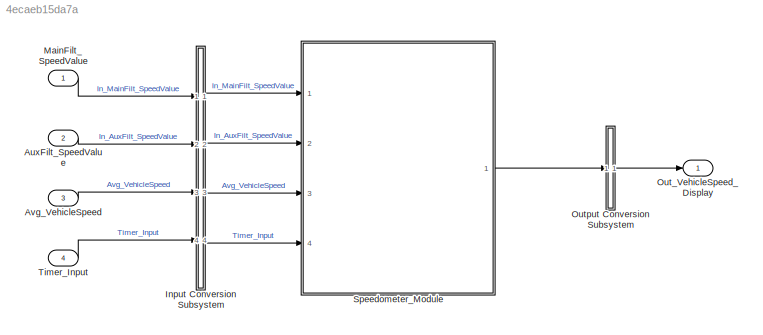
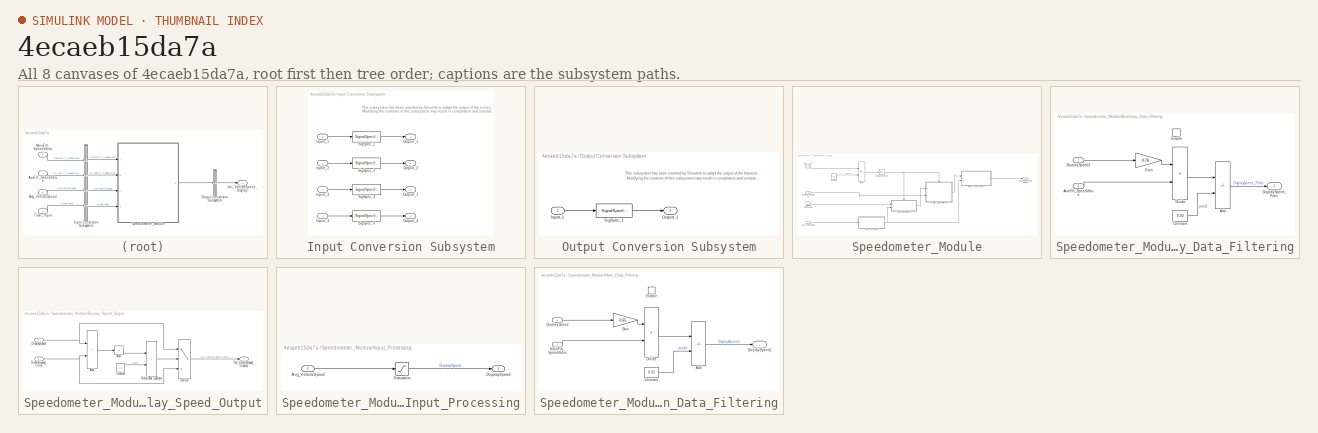
[diagram: thumbnail index - all 8 canvases of the model, root first then tree order]
MODEL slx_4ecaeb15da7a
KIND model
CONFIG AbsTol = auto
CONFIG EnableMultiTasking = off
CONFIG FixedStep = 0.01
CONFIG MaxStep = auto
CONFIG MinStep = auto
CONFIG RelTol = 1e-3
CONFIG SampleTimeConstraint = Unconstrained
CONFIG SolverName = FixedStepDiscrete
CONFIG StartTime = 0.0
CONFIG StopTime = 10.0
BLOCK [Inport] AuxFilt_SpeedValue
  Interpolate = off
  OutDataTypeStr = uint8
  OutMax = 3
  OutMin = 1
  Port = 2
  PortDimensions = [1]
  SampleTime = 0.01
  SignalType = real
  VarSizeSig = No
BLOCK [Inport] Avg_VehicleSpeed
  Interpolate = off
  OutDataTypeStr = fixdt('ufix16_Sp01')
  OutMax = 280
  OutMin = 0
  Port = 3
  PortDimensions = [1]
  SampleTime = 0.01
  SignalType = real
  VarSizeSig = No
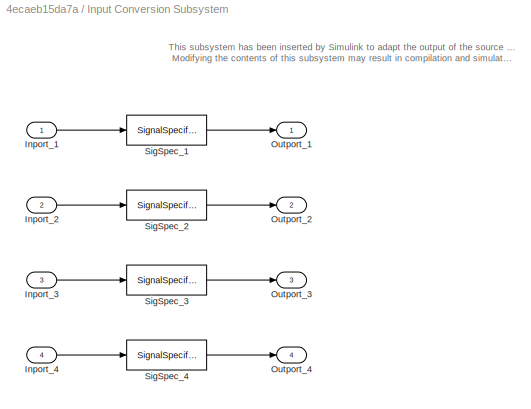
BLOCK [SubSystem] Input Conversion Subsystem
  AttributesFormatString = %<Description>
  Description = Signal spec.\nand routing
  Permissions = ReadOnly
  PermitHierarchicalResolution = ExplicitOnly
  Ports = [4, 4]
  RequestExecContextInheritance = off
  Tag = __SLT_ICS__
  TreatAsGroupedWhenPropagatingVariantConditions = off
  UserDataPersistent = on
BLOCK [Inport] Input Conversion Subsystem/Inport_1
BLOCK [Inport] Input Conversion Subsystem/Inport_2
  Port = 2
BLOCK [Inport] Input Conversion Subsystem/Inport_3
  Port = 3
BLOCK [Inport] Input Conversion Subsystem/Inport_4
  Port = 4
BLOCK [Outport] Input Conversion Subsystem/Outport_1
BLOCK [Outport] Input Conversion Subsystem/Outport_2
  Port = 2
BLOCK [Outport] Input Conversion Subsystem/Outport_3
  Port = 3
BLOCK [Outport] Input Conversion Subsystem/Outport_4
  Port = 4
BLOCK [SignalSpecification] Input Conversion Subsystem/SigSpec_1
  Dimensions = [1]
  OutDataTypeStr = uint8
  SampleTime = 0.01
  SignalType = real
  VarSizeSig = No
BLOCK [SignalSpecification] Input Conversion Subsystem/SigSpec_2
  Dimensions = [1]
  OutDataTypeStr = uint8
  SampleTime = 0.01
  SignalType = real
  VarSizeSig = No
BLOCK [SignalSpecification] Input Conversion Subsystem/SigSpec_3
  Dimensions = [1]
  OutDataTypeStr = fixdt('ufix16_Sp01')
  SampleTime = 0.01
  SignalType = real
  VarSizeSig = No
BLOCK [SignalSpecification] Input Conversion Subsystem/SigSpec_4
  Dimensions = [1]
  OutDataTypeStr = uint16
  SampleTime = 0.01
  SignalType = real
  VarSizeSig = No
BLOCK [Inport] MainFilt_SpeedValue
  Interpolate = off
  OutDataTypeStr = uint8
  OutMax = 3
  OutMin = 1
  PortDimensions = [1]
  SampleTime = 0.01
  SignalType = real
  VarSizeSig = No
BLOCK [Outport] Out_VehicleSpeed_Display
BLOCK [SubSystem] Output Conversion Subsystem
  AttributesFormatString = %<Description>
  Description = Signal spec.\nand routing
  Permissions = ReadOnly
  PermitHierarchicalResolution = ExplicitOnly
  Ports = [1, 1]
  RequestExecContextInheritance = off
  Tag = __SLT_OCS__
  TreatAsGroupedWhenPropagatingVariantConditions = off
  UserDataPersistent = on
BLOCK [Inport] Output Conversion Subsystem/Inport_1
BLOCK [Outport] Output Conversion Subsystem/Outport_1
BLOCK [SignalSpecification] Output Conversion Subsystem/SigSpec_1
  Dimensions = [1]
  OutDataTypeStr = fixdt('ufix16_Sp01')
  SampleTime = 0.01
  SignalType = real
  VarSizeSig = No
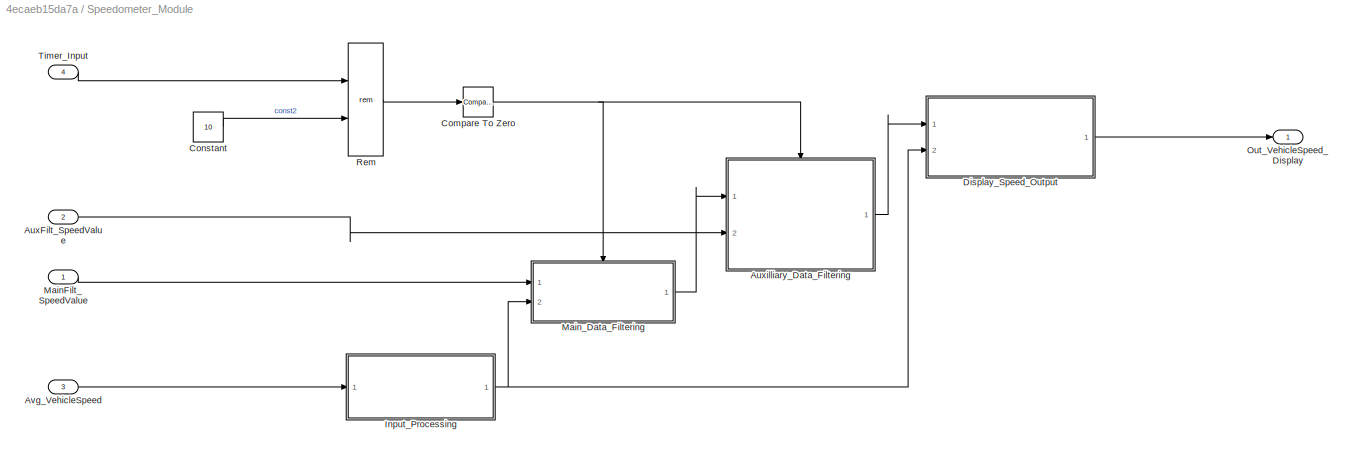
BLOCK [SubSystem] Speedometer_Module
  Ports = [4, 1]
  RequestExecContextInheritance = off
  TreatAsAtomicUnit = on
BLOCK [Inport] Speedometer_Module/AuxFilt_SpeedValue
  OutDataTypeStr = fixdt(0,8,1,0)
  OutMax = 3
  OutMin = 1
  Port = 2
  PortDimensions = 1
  SampleTime = 0.01
BLOCK [SubSystem] Speedometer_Module/Auxilliary_Data_Filtering
  Ports = [2, 1, 1]
  RequestExecContextInheritance = off
BLOCK [Sum] Speedometer_Module/Auxilliary_Data_Filtering/Add
  AccumDataTypeStr = fixdt(0,16,0.01,0)
  IconShape = rectangular
  Inputs = +-
  OutDataTypeStr = fixdt(0,16,0.01,0)
  Ports = [2, 1]
BLOCK [Inport] Speedometer_Module/Auxilliary_Data_Filtering/AuxFilt_SpeedValue
  Port = 2
BLOCK [Constant] Speedometer_Module/Auxilliary_Data_Filtering/Constant
  OutDataTypeStr = fixdt(0,16,0.01,0)
  OutMax = 0.03
  OutMin = 0.03
  Value = 0.03
BLOCK [Inport] Speedometer_Module/Auxilliary_Data_Filtering/DisplaySpeed1
  OutDataTypeStr = fixdt(0,16,0.01,0)
  PortDimensions = 1
  SampleTime = 0.01
BLOCK [Outport] Speedometer_Module/Auxilliary_Data_Filtering/DisplaySpeed_Filter
  OutDataTypeStr = fixdt(0,16,0.01,0)
  PortDimensions = 1
  SampleTime = 0.01
BLOCK [Product] Speedometer_Module/Auxilliary_Data_Filtering/Divide
  Inputs = */
  OutDataTypeStr = fixdt(0,16,0.01,0)
  Ports = [2, 1]
BLOCK [EnablePort] Speedometer_Module/Auxilliary_Data_Filtering/Enable
  Ports = []
BLOCK [Gain] Speedometer_Module/Auxilliary_Data_Filtering/Gain
  Gain = 0.78
  OutDataTypeStr = fixdt(0,16,0.01,0)
  ParamDataTypeStr = fixdt(0,16,0.01,0)
  ParamMax = 0.78
  ParamMin = 0.78
BLOCK [Inport] Speedometer_Module/Avg_VehicleSpeed
  OutDataTypeStr = fixdt(0,16,0.01,0)
  OutMax = 280
  OutMin = 0
  Port = 3
  PortDimensions = 1
  SampleTime = 0.01
BLOCK [Reference] Speedometer_Module/Compare To Zero  REF=simulink/Logic and Bit
Operations/Compare
To Zero
  Ports = [1, 1]
  SourceBlock = simulink/Logic and Bit\nOperations/Compare\nTo Zero
  SourceProductBaseCode = SL
  SourceType = Compare To Zero
BLOCK [Constant] Speedometer_Module/Constant
  OutDataTypeStr = fixdt(0,16,0)
  Value = 10
BLOCK [SubSystem] Speedometer_Module/Display_Speed_Output
  Ports = [2, 1]
  RequestExecContextInheritance = off
BLOCK [Abs] Speedometer_Module/Display_Speed_Output/Abs
  OutDataTypeStr = fixdt(0,16,0.01,0)
  SaturateOnIntegerOverflow = off
BLOCK [Sum] Speedometer_Module/Display_Speed_Output/Add
  AccumDataTypeStr = fixdt(0,16,0.01,0)
  IconShape = rectangular
  Inputs = -+
  OutDataTypeStr = fixdt(0,16,0.01,0)
  Ports = [2, 1]
BLOCK [Constant] Speedometer_Module/Display_Speed_Output/Constant
  OutDataTypeStr = fixdt(0,16,0.01,0)
  OutMax = 1.5
  OutMin = 1.5
  Value = 1.5
BLOCK [Inport] Speedometer_Module/Display_Speed_Output/DisplaySpeed
  OutDataTypeStr = fixdt(0,16,0.01,0)
  Port = 2
  PortDimensions = 1
  SampleTime = 0.01
BLOCK [Inport] Speedometer_Module/Display_Speed_Output/DisplaySpeed_Filter
  OutDataTypeStr = fixdt(0,16,0.01,0)
  PortDimensions = 1
  SampleTime = 0.01
BLOCK [Outport] Speedometer_Module/Display_Speed_Output/Out_VehicleSpeed_Display
BLOCK [RelationalOperator] Speedometer_Module/Display_Speed_Output/Relational Operator
  InputSameDT = off
  Operator = >
  OutDataTypeStr = boolean
  Ports = [2, 1]
  RndMeth = Simplest
BLOCK [Switch] Speedometer_Module/Display_Speed_Output/Switch
  Criteria = u2 ~= 0
  InputSameDT = off
  OutDataTypeStr = fixdt(0,16,0.01,0)
  SaturateOnIntegerOverflow = off
BLOCK [SubSystem] Speedometer_Module/Input_Processing
  Ports = [1, 1]
  RequestExecContextInheritance = off
BLOCK [Inport] Speedometer_Module/Input_Processing/Avg_VehicleSpeed
  OutDataTypeStr = fixdt(0,16,0.01,0)
  OutMax = 280
  OutMin = 0
  PortDimensions = 1
  SampleTime = 0.01
BLOCK [Outport] Speedometer_Module/Input_Processing/DisplaySpeed
  OutDataTypeStr = fixdt(0,16,0.01,0)
  PortDimensions = 1
  SampleTime = 0.01
BLOCK [Saturate] Speedometer_Module/Input_Processing/Saturation
  LowerLimit = 2
  OutDataTypeStr = fixdt(0,16,0.01,0)
  UpperLimit = 250
BLOCK [Inport] Speedometer_Module/MainFilt_SpeedValue
  OutDataTypeStr = fixdt(0,8,1,0)
  OutMax = 3
  OutMin = 1
  PortDimensions = 1
  SampleTime = 0.01
BLOCK [SubSystem] Speedometer_Module/Main_Data_Filtering
  Ports = [2, 1, 1]
  RequestExecContextInheritance = off
BLOCK [Sum] Speedometer_Module/Main_Data_Filtering/Add
  AccumDataTypeStr = fixdt(0,16,0.01,0)
  IconShape = rectangular
  Inputs = +-
  OutDataTypeStr = fixdt(0,16,0.01,0)
  Ports = [2, 1]
BLOCK [Constant] Speedometer_Module/Main_Data_Filtering/Constant
  OutDataTypeStr = fixdt(0,16,0.01,0)
  OutMax = 0.05
  OutMin = 0.05
  Value = 0.05
BLOCK [Inport] Speedometer_Module/Main_Data_Filtering/DisplaySpeed
  OutDataTypeStr = fixdt(0,16,0.01,0)
  Port = 2
  PortDimensions = 1
  SampleTime = 0.01
BLOCK [Outport] Speedometer_Module/Main_Data_Filtering/DisplaySpeed1
  OutDataTypeStr = fixdt(0,16,0.01,0)
  PortDimensions = 1
  SampleTime = 0.01
BLOCK [Product] Speedometer_Module/Main_Data_Filtering/Divide
  Inputs = */
  OutDataTypeStr = fixdt(0,16,0.01,0)
  Ports = [2, 1]
BLOCK [EnablePort] Speedometer_Module/Main_Data_Filtering/Enable
  Ports = []
BLOCK [Gain] Speedometer_Module/Main_Data_Filtering/Gain
  Gain = 0.65
  OutDataTypeStr = fixdt(0,16,0.01,0)
  ParamDataTypeStr = fixdt(0,16,0.01,0)
  ParamMax = 0.65
  ParamMin = 0.65
BLOCK [Inport] Speedometer_Module/Main_Data_Filtering/MainFilt_SpeedValue
  OutDataTypeStr = fixdt(0,8,1,0)
  OutMax = 3
  OutMin = 1
  PortDimensions = 1
  SampleTime = 0.01
BLOCK [Outport] Speedometer_Module/Out_VehicleSpeed_Display
BLOCK [Math] Speedometer_Module/Rem
  Operator = rem
  Ports = [2, 1]
BLOCK [Inport] Speedometer_Module/Timer_Input
  OutDataTypeStr = fixdt(0,16,0)
  Port = 4
  PortDimensions = 1
  SampleTime = 0.01
BLOCK [Inport] Timer_Input
  Interpolate = off
  OutDataTypeStr = uint16
  Port = 4
  PortDimensions = [1]
  SampleTime = 0.01
  SignalType = real
  VarSizeSig = No
ANNOTATION Input Conversion Subsystem: This subsystem has been inserted by Simulink to adapt the output of the source blocks to the interface required by the harnessed component. Modifying the contents of this subsystem may result in compilation and simulation failure.
ANNOTATION Output Conversion Subsystem: This subsystem has been inserted by Simulink to adapt the output of the harnessed component to the interface required by the sink blocks. Modifying the contents of this subsystem may result in compilation and simulation failure.
LINE AuxFilt_SpeedValue:1 -> Input Conversion Subsystem:2
LINE Avg_VehicleSpeed:1 -> Input Conversion Subsystem:3
LINE Input Conversion Subsystem/Inport_1:1 -> Input Conversion Subsystem/SigSpec_1:1
LINE Input Conversion Subsystem/Inport_2:1 -> Input Conversion Subsystem/SigSpec_2:1
LINE Input Conversion Subsystem/Inport_3:1 -> Input Conversion Subsystem/SigSpec_3:1
LINE Input Conversion Subsystem/Inport_4:1 -> Input Conversion Subsystem/SigSpec_4:1
LINE Input Conversion Subsystem/SigSpec_1:1 -> Input Conversion Subsystem/Outport_1:1
LINE Input Conversion Subsystem/SigSpec_2:1 -> Input Conversion Subsystem/Outport_2:1
LINE Input Conversion Subsystem/SigSpec_3:1 -> Input Conversion Subsystem/Outport_3:1
LINE Input Conversion Subsystem/SigSpec_4:1 -> Input Conversion Subsystem/Outport_4:1
LINE Input Conversion Subsystem:1 -> Speedometer_Module:1
LINE Input Conversion Subsystem:2 -> Speedometer_Module:2
LINE Input Conversion Subsystem:3 -> Speedometer_Module:3
LINE Input Conversion Subsystem:4 -> Speedometer_Module:4
LINE MainFilt_SpeedValue:1 -> Input Conversion Subsystem:1
LINE Output Conversion Subsystem/Inport_1:1 -> Output Conversion Subsystem/SigSpec_1:1
LINE Output Conversion Subsystem/SigSpec_1:1 -> Output Conversion Subsystem/Outport_1:1
LINE Output Conversion Subsystem:1 -> Out_VehicleSpeed_Display:1
LINE Speedometer_Module/AuxFilt_SpeedValue:1 -> Speedometer_Module/Auxilliary_Data_Filtering:2
LINE Speedometer_Module/Auxilliary_Data_Filtering/Add:1 -> Speedometer_Module/Auxilliary_Data_Filtering/DisplaySpeed_Filter:1
LINE Speedometer_Module/Auxilliary_Data_Filtering/AuxFilt_SpeedValue:1 -> Speedometer_Module/Auxilliary_Data_Filtering/Divide:2
LINE Speedometer_Module/Auxilliary_Data_Filtering/Constant:1 -> Speedometer_Module/Auxilliary_Data_Filtering/Add:2
LINE Speedometer_Module/Auxilliary_Data_Filtering/DisplaySpeed1:1 -> Speedometer_Module/Auxilliary_Data_Filtering/Gain:1
LINE Speedometer_Module/Auxilliary_Data_Filtering/Divide:1 -> Speedometer_Module/Auxilliary_Data_Filtering/Add:1
LINE Speedometer_Module/Auxilliary_Data_Filtering/Gain:1 -> Speedometer_Module/Auxilliary_Data_Filtering/Divide:1
LINE Speedometer_Module/Auxilliary_Data_Filtering:1 -> Speedometer_Module/Display_Speed_Output:1
LINE Speedometer_Module/Avg_VehicleSpeed:1 -> Speedometer_Module/Input_Processing:1
NET Speedometer_Module/Compare To Zero:1 -> Speedometer_Module/Auxilliary_Data_Filtering:enable, Speedometer_Module/Main_Data_Filtering:enable
LINE Speedometer_Module/Constant:1 -> Speedometer_Module/Rem:2
LINE Speedometer_Module/Display_Speed_Output/Abs:1 -> Speedometer_Module/Display_Speed_Output/Relational Operator:1
LINE Speedometer_Module/Display_Speed_Output/Add:1 -> Speedometer_Module/Display_Speed_Output/Abs:1
LINE Speedometer_Module/Display_Speed_Output/Constant:1 -> Speedometer_Module/Display_Speed_Output/Relational Operator:2
NET Speedometer_Module/Display_Speed_Output/DisplaySpeed:1 -> Speedometer_Module/Display_Speed_Output/Add:1, Speedometer_Module/Display_Speed_Output/Switch:1
NET Speedometer_Module/Display_Speed_Output/DisplaySpeed_Filter:1 -> Speedometer_Module/Display_Speed_Output/Add:2, Speedometer_Module/Display_Speed_Output/Switch:3
LINE Speedometer_Module/Display_Speed_Output/Relational Operator:1 -> Speedometer_Module/Display_Speed_Output/Switch:2
LINE Speedometer_Module/Display_Speed_Output/Switch:1 -> Speedometer_Module/Display_Speed_Output/Out_VehicleSpeed_Display:1
LINE Speedometer_Module/Display_Speed_Output:1 -> Speedometer_Module/Out_VehicleSpeed_Display:1
LINE Speedometer_Module/Input_Processing/Avg_VehicleSpeed:1 -> Speedometer_Module/Input_Processing/Saturation:1
LINE Speedometer_Module/Input_Processing/Saturation:1 -> Speedometer_Module/Input_Processing/DisplaySpeed:1
NET Speedometer_Module/Input_Processing:1 -> Speedometer_Module/Display_Speed_Output:2, Speedometer_Module/Main_Data_Filtering:2
LINE Speedometer_Module/MainFilt_SpeedValue:1 -> Speedometer_Module/Main_Data_Filtering:1
LINE Speedometer_Module/Main_Data_Filtering/Add:1 -> Speedometer_Module/Main_Data_Filtering/DisplaySpeed1:1
LINE Speedometer_Module/Main_Data_Filtering/Constant:1 -> Speedometer_Module/Main_Data_Filtering/Add:2
LINE Speedometer_Module/Main_Data_Filtering/DisplaySpeed:1 -> Speedometer_Module/Main_Data_Filtering/Gain:1
LINE Speedometer_Module/Main_Data_Filtering/Divide:1 -> Speedometer_Module/Main_Data_Filtering/Add:1
LINE Speedometer_Module/Main_Data_Filtering/Gain:1 -> Speedometer_Module/Main_Data_Filtering/Divide:1
LINE Speedometer_Module/Main_Data_Filtering/MainFilt_SpeedValue:1 -> Speedometer_Module/Main_Data_Filtering/Divide:2
LINE Speedometer_Module/Main_Data_Filtering:1 -> Speedometer_Module/Auxilliary_Data_Filtering:1
LINE Speedometer_Module/Rem:1 -> Speedometer_Module/Compare To Zero:1
LINE Speedometer_Module/Timer_Input:1 -> Speedometer_Module/Rem:1
LINE Speedometer_Module:1 -> Output Conversion Subsystem:1
LINE Timer_Input:1 -> Input Conversion Subsystem:4
note: NET lines group one-source signal fan-out (src -> all destinations, sorted); 1:1 wires keep LINE
